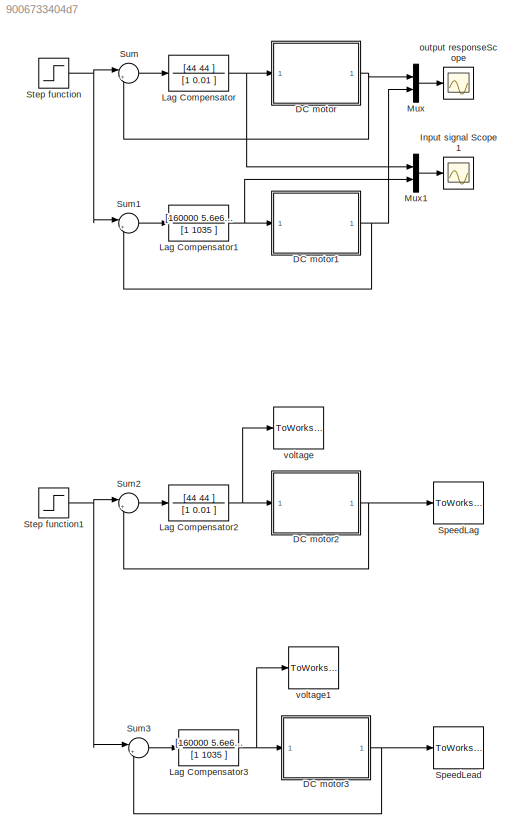
MODEL slx_9006733404d7
KIND model
CONFIG AbsTol = auto
CONFIG EnableMultiTasking = off
CONFIG FixedStep = auto
CONFIG MaxStep = auto
CONFIG MinStep = auto
CONFIG RelTol = 1e-3
CONFIG SampleTimeConstraint = Unconstrained
CONFIG Solver = VariableStepAuto
CONFIG SolverName = VariableStepAuto
CONFIG StartTime = 0.0
CONFIG StopTime = 1.0
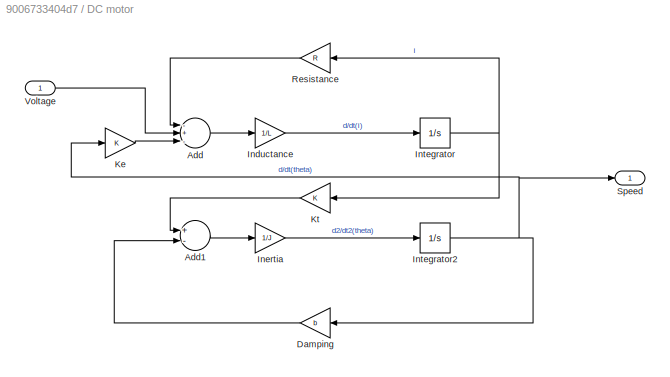
BLOCK [SubSystem] DC motor
  Ports = [1, 1]
  RequestExecContextInheritance = off
BLOCK [Sum] DC motor/Add
  InputSameDT = off
  Inputs = -+-
  OutDataTypeStr = Inherit: Inherit via internal rule
  Ports = [3, 1]
  SaturateOnIntegerOverflow = off
BLOCK [Sum] DC motor/Add1
  InputSameDT = off
  Inputs = +-
  OutDataTypeStr = Inherit: Inherit via internal rule
  Ports = [2, 1]
  SaturateOnIntegerOverflow = off
BLOCK [Gain] DC motor/Damping
  Gain = b
  OutDataTypeStr = Inherit: Inherit via internal rule
  ParamDataTypeStr = Inherit: Inherit via internal rule
  SaturateOnIntegerOverflow = off
BLOCK [Gain] DC motor/Inductance
  Gain = 1/L
  OutDataTypeStr = Inherit: Inherit via internal rule
  ParamDataTypeStr = Inherit: Inherit via internal rule
  SaturateOnIntegerOverflow = off
BLOCK [Gain] DC motor/Inertia
  Gain = 1/J
  OutDataTypeStr = Inherit: Inherit via internal rule
  ParamDataTypeStr = Inherit: Inherit via internal rule
  SaturateOnIntegerOverflow = off
BLOCK [Integrator] DC motor/Integrator
  Ports = [1, 1]
BLOCK [Integrator] DC motor/Integrator2
  Ports = [1, 1]
BLOCK [Gain] DC motor/Ke
  Gain = K
  OutDataTypeStr = Inherit: Inherit via internal rule
  ParamDataTypeStr = Inherit: Inherit via internal rule
  SaturateOnIntegerOverflow = off
BLOCK [Gain] DC motor/Kt
  Gain = K
  OutDataTypeStr = Inherit: Inherit via internal rule
  ParamDataTypeStr = Inherit: Inherit via internal rule
  SaturateOnIntegerOverflow = off
BLOCK [Gain] DC motor/Resistance
  Gain = R
  OutDataTypeStr = Inherit: Inherit via internal rule
  ParamDataTypeStr = Inherit: Inherit via internal rule
  SaturateOnIntegerOverflow = off
BLOCK [Outport] DC motor/Speed
  IconDisplay = Port number
BLOCK [Inport] DC motor/Voltage
  IconDisplay = Port number
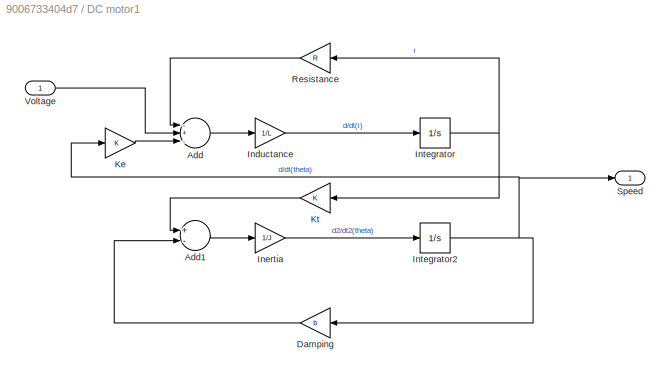
BLOCK [SubSystem] DC motor1
  Ports = [1, 1]
  RequestExecContextInheritance = off
BLOCK [Sum] DC motor1/Add
  InputSameDT = off
  Inputs = -+-
  OutDataTypeStr = Inherit: Inherit via internal rule
  Ports = [3, 1]
  SaturateOnIntegerOverflow = off
BLOCK [Sum] DC motor1/Add1
  InputSameDT = off
  Inputs = +-
  OutDataTypeStr = Inherit: Inherit via internal rule
  Ports = [2, 1]
  SaturateOnIntegerOverflow = off
BLOCK [Gain] DC motor1/Damping
  Gain = b
  OutDataTypeStr = Inherit: Inherit via internal rule
  ParamDataTypeStr = Inherit: Inherit via internal rule
  SaturateOnIntegerOverflow = off
BLOCK [Gain] DC motor1/Inductance
  Gain = 1/L
  OutDataTypeStr = Inherit: Inherit via internal rule
  ParamDataTypeStr = Inherit: Inherit via internal rule
  SaturateOnIntegerOverflow = off
BLOCK [Gain] DC motor1/Inertia
  Gain = 1/J
  OutDataTypeStr = Inherit: Inherit via internal rule
  ParamDataTypeStr = Inherit: Inherit via internal rule
  SaturateOnIntegerOverflow = off
BLOCK [Integrator] DC motor1/Integrator
  Ports = [1, 1]
BLOCK [Integrator] DC motor1/Integrator2
  Ports = [1, 1]
BLOCK [Gain] DC motor1/Ke
  Gain = K
  OutDataTypeStr = Inherit: Inherit via internal rule
  ParamDataTypeStr = Inherit: Inherit via internal rule
  SaturateOnIntegerOverflow = off
BLOCK [Gain] DC motor1/Kt
  Gain = K
  OutDataTypeStr = Inherit: Inherit via internal rule
  ParamDataTypeStr = Inherit: Inherit via internal rule
  SaturateOnIntegerOverflow = off
BLOCK [Gain] DC motor1/Resistance
  Gain = R
  OutDataTypeStr = Inherit: Inherit via internal rule
  ParamDataTypeStr = Inherit: Inherit via internal rule
  SaturateOnIntegerOverflow = off
BLOCK [Outport] DC motor1/Speed
  IconDisplay = Port number
BLOCK [Inport] DC motor1/Voltage
  IconDisplay = Port number
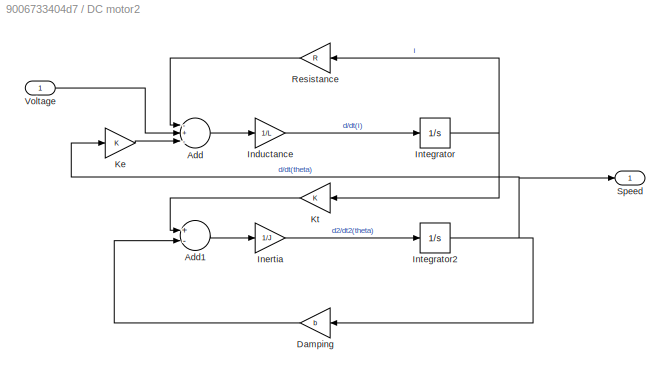
BLOCK [SubSystem] DC motor2
  Ports = [1, 1]
  RequestExecContextInheritance = off
BLOCK [Sum] DC motor2/Add
  InputSameDT = off
  Inputs = -+-
  OutDataTypeStr = Inherit: Inherit via internal rule
  Ports = [3, 1]
  SaturateOnIntegerOverflow = off
BLOCK [Sum] DC motor2/Add1
  InputSameDT = off
  Inputs = +-
  OutDataTypeStr = Inherit: Inherit via internal rule
  Ports = [2, 1]
  SaturateOnIntegerOverflow = off
BLOCK [Gain] DC motor2/Damping
  Gain = b
  OutDataTypeStr = Inherit: Inherit via internal rule
  ParamDataTypeStr = Inherit: Inherit via internal rule
  SaturateOnIntegerOverflow = off
BLOCK [Gain] DC motor2/Inductance
  Gain = 1/L
  OutDataTypeStr = Inherit: Inherit via internal rule
  ParamDataTypeStr = Inherit: Inherit via internal rule
  SaturateOnIntegerOverflow = off
BLOCK [Gain] DC motor2/Inertia
  Gain = 1/J
  OutDataTypeStr = Inherit: Inherit via internal rule
  ParamDataTypeStr = Inherit: Inherit via internal rule
  SaturateOnIntegerOverflow = off
BLOCK [Integrator] DC motor2/Integrator
  Ports = [1, 1]
BLOCK [Integrator] DC motor2/Integrator2
  Ports = [1, 1]
BLOCK [Gain] DC motor2/Ke
  Gain = K
  OutDataTypeStr = Inherit: Inherit via internal rule
  ParamDataTypeStr = Inherit: Inherit via internal rule
  SaturateOnIntegerOverflow = off
BLOCK [Gain] DC motor2/Kt
  Gain = K
  OutDataTypeStr = Inherit: Inherit via internal rule
  ParamDataTypeStr = Inherit: Inherit via internal rule
  SaturateOnIntegerOverflow = off
BLOCK [Gain] DC motor2/Resistance
  Gain = R
  OutDataTypeStr = Inherit: Inherit via internal rule
  ParamDataTypeStr = Inherit: Inherit via internal rule
  SaturateOnIntegerOverflow = off
BLOCK [Outport] DC motor2/Speed
  IconDisplay = Port number
BLOCK [Inport] DC motor2/Voltage
  IconDisplay = Port number
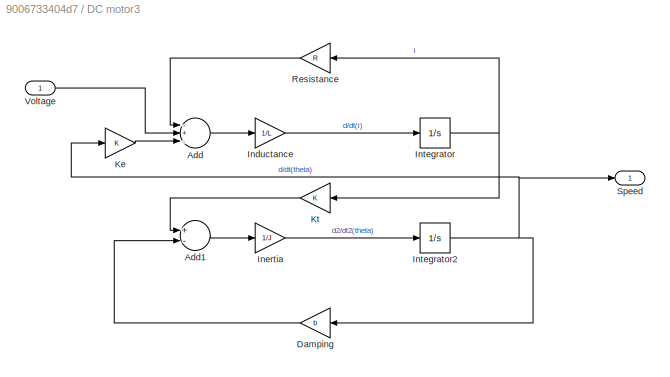
BLOCK [SubSystem] DC motor3
  Ports = [1, 1]
  RequestExecContextInheritance = off
BLOCK [Sum] DC motor3/Add
  InputSameDT = off
  Inputs = -+-
  OutDataTypeStr = Inherit: Inherit via internal rule
  Ports = [3, 1]
  SaturateOnIntegerOverflow = off
BLOCK [Sum] DC motor3/Add1
  InputSameDT = off
  Inputs = +-
  OutDataTypeStr = Inherit: Inherit via internal rule
  Ports = [2, 1]
  SaturateOnIntegerOverflow = off
BLOCK [Gain] DC motor3/Damping
  Gain = b
  OutDataTypeStr = Inherit: Inherit via internal rule
  ParamDataTypeStr = Inherit: Inherit via internal rule
  SaturateOnIntegerOverflow = off
BLOCK [Gain] DC motor3/Inductance
  Gain = 1/L
  OutDataTypeStr = Inherit: Inherit via internal rule
  ParamDataTypeStr = Inherit: Inherit via internal rule
  SaturateOnIntegerOverflow = off
BLOCK [Gain] DC motor3/Inertia
  Gain = 1/J
  OutDataTypeStr = Inherit: Inherit via internal rule
  ParamDataTypeStr = Inherit: Inherit via internal rule
  SaturateOnIntegerOverflow = off
BLOCK [Integrator] DC motor3/Integrator
  Ports = [1, 1]
BLOCK [Integrator] DC motor3/Integrator2
  Ports = [1, 1]
BLOCK [Gain] DC motor3/Ke
  Gain = K
  OutDataTypeStr = Inherit: Inherit via internal rule
  ParamDataTypeStr = Inherit: Inherit via internal rule
  SaturateOnIntegerOverflow = off
BLOCK [Gain] DC motor3/Kt
  Gain = K
  OutDataTypeStr = Inherit: Inherit via internal rule
  ParamDataTypeStr = Inherit: Inherit via internal rule
  SaturateOnIntegerOverflow = off
BLOCK [Gain] DC motor3/Resistance
  Gain = R
  OutDataTypeStr = Inherit: Inherit via internal rule
  ParamDataTypeStr = Inherit: Inherit via internal rule
  SaturateOnIntegerOverflow = off
BLOCK [Outport] DC motor3/Speed
  IconDisplay = Port number
BLOCK [Inport] DC motor3/Voltage
  IconDisplay = Port number
BLOCK [Scope] Input signal Scope 1
  Floating = off
  NumInputPorts = 1
  Ports = [1]
  ScopeSpecificationString = Simulink.scopes.TimeScopeBlockCfg('CurrentConfiguration', extmgr.ConfigurationSet(extmgr.Configuration('Core','General UI',true),extmgr.Configuration('Core','Source UI',true),extmgr.Configuration('Sources','WiredSimulink',true,'DataLoggingVariableName','ScopeData1'),extmgr.Configuration('Visuals','Time Domain',true,'SerializedDisplays',{struct('MinYLimReal','-45920.74104','MaxYLimReal','182880.082...<+1502ch>
BLOCK [TransferFcn] Lag Compensator
  Denominator = [1 0.01 ]
  Numerator = [44 44 ]
BLOCK [TransferFcn] Lag Compensator1
  Denominator = [1 1035 ]
  Numerator = [160000 5.6e6 ]
BLOCK [TransferFcn] Lag Compensator2
  Denominator = [1 0.01 ]
  Numerator = [44 44 ]
BLOCK [TransferFcn] Lag Compensator3
  Denominator = [1 1035 ]
  Numerator = [160000 5.6e6 ]
BLOCK [Mux] Mux
  DisplayOption = bar
  Inputs = 2
  Ports = [2, 1]
BLOCK [Mux] Mux1
  DisplayOption = bar
  Inputs = 2
  Ports = [2, 1]
BLOCK [ToWorkspace] SpeedLag
  MaxDataPoints = inf
  Ports = [1]
  SampleTime = -1
  Save2DSignal = 2-D array (concatenate along first dimension)
  VariableName = ylag
BLOCK [ToWorkspace] SpeedLead
  MaxDataPoints = inf
  Ports = [1]
  SampleTime = -1
  Save2DSignal = 2-D array (concatenate along first dimension)
  VariableName = ylead
BLOCK [Step] Step function
  SampleTime = 0
  Time = 0
BLOCK [Step] Step function1
  SampleTime = 0
  Time = 0
BLOCK [Sum] Sum
  IconShape = round
  InputSameDT = off
  Inputs = |+-
  OutDataTypeStr = Inherit: Inherit via internal rule
  Ports = [2, 1]
  SaturateOnIntegerOverflow = off
BLOCK [Sum] Sum1
  IconShape = round
  InputSameDT = off
  Inputs = |+-
  OutDataTypeStr = Inherit: Inherit via internal rule
  Ports = [2, 1]
  SaturateOnIntegerOverflow = off
BLOCK [Sum] Sum2
  IconShape = round
  InputSameDT = off
  Inputs = |+-
  OutDataTypeStr = Inherit: Inherit via internal rule
  Ports = [2, 1]
  SaturateOnIntegerOverflow = off
BLOCK [Sum] Sum3
  IconShape = round
  InputSameDT = off
  Inputs = |+-
  OutDataTypeStr = Inherit: Inherit via internal rule
  Ports = [2, 1]
  SaturateOnIntegerOverflow = off
BLOCK [Scope] output responseScope 
  Floating = off
  NumInputPorts = 1
  Ports = [1]
  ScopeSpecificationString = Simulink.scopes.TimeScopeBlockCfg('CurrentConfiguration', extmgr.ConfigurationSet(extmgr.Configuration('Core','General UI',true),extmgr.Configuration('Core','Source UI',true),extmgr.Configuration('Sources','WiredSimulink',true),extmgr.Configuration('Visuals','Time Domain',true,'SerializedDisplays',{struct('MinYLimReal','-0.13257','MaxYLimReal','1.19312','YLabelReal','','MinYLimMag','0.00000','MaxY...<+1391ch>
BLOCK [ToWorkspace] voltage
  MaxDataPoints = inf
  Ports = [1]
  SampleTime = -1
  Save2DSignal = 2-D array (concatenate along first dimension)
  VariableName = ulag
BLOCK [ToWorkspace] voltage1
  MaxDataPoints = inf
  Ports = [1]
  SampleTime = -1
  Save2DSignal = 2-D array (concatenate along first dimension)
  VariableName = ulead
LINE DC motor/Add1:1 -> DC motor/Inertia:1
LINE DC motor/Add:1 -> DC motor/Inductance:1
LINE DC motor/Damping:1 -> DC motor/Add1:2
LINE DC motor/Inductance:1 -> DC motor/Integrator:1
LINE DC motor/Inertia:1 -> DC motor/Integrator2:1
NET DC motor/Integrator2:1 -> DC motor/Damping:1, DC motor/Ke:1, DC motor/Speed:1
NET DC motor/Integrator:1 -> DC motor/Kt:1, DC motor/Resistance:1
LINE DC motor/Ke:1 -> DC motor/Add:3
LINE DC motor/Kt:1 -> DC motor/Add1:1
LINE DC motor/Resistance:1 -> DC motor/Add:1
LINE DC motor/Voltage:1 -> DC motor/Add:2
LINE DC motor1/Add1:1 -> DC motor1/Inertia:1
LINE DC motor1/Add:1 -> DC motor1/Inductance:1
LINE DC motor1/Damping:1 -> DC motor1/Add1:2
LINE DC motor1/Inductance:1 -> DC motor1/Integrator:1
LINE DC motor1/Inertia:1 -> DC motor1/Integrator2:1
NET DC motor1/Integrator2:1 -> DC motor1/Damping:1, DC motor1/Ke:1, DC motor1/Speed:1
NET DC motor1/Integrator:1 -> DC motor1/Kt:1, DC motor1/Resistance:1
LINE DC motor1/Ke:1 -> DC motor1/Add:3
LINE DC motor1/Kt:1 -> DC motor1/Add1:1
LINE DC motor1/Resistance:1 -> DC motor1/Add:1
LINE DC motor1/Voltage:1 -> DC motor1/Add:2
NET DC motor1:1 -> Mux:2, Sum1:2
LINE DC motor2/Add1:1 -> DC motor2/Inertia:1
LINE DC motor2/Add:1 -> DC motor2/Inductance:1
LINE DC motor2/Damping:1 -> DC motor2/Add1:2
LINE DC motor2/Inductance:1 -> DC motor2/Integrator:1
LINE DC motor2/Inertia:1 -> DC motor2/Integrator2:1
NET DC motor2/Integrator2:1 -> DC motor2/Damping:1, DC motor2/Ke:1, DC motor2/Speed:1
NET DC motor2/Integrator:1 -> DC motor2/Kt:1, DC motor2/Resistance:1
LINE DC motor2/Ke:1 -> DC motor2/Add:3
LINE DC motor2/Kt:1 -> DC motor2/Add1:1
LINE DC motor2/Resistance:1 -> DC motor2/Add:1
LINE DC motor2/Voltage:1 -> DC motor2/Add:2
NET DC motor2:1 -> SpeedLag:1, Sum2:2
LINE DC motor3/Add1:1 -> DC motor3/Inertia:1
LINE DC motor3/Add:1 -> DC motor3/Inductance:1
LINE DC motor3/Damping:1 -> DC motor3/Add1:2
LINE DC motor3/Inductance:1 -> DC motor3/Integrator:1
LINE DC motor3/Inertia:1 -> DC motor3/Integrator2:1
NET DC motor3/Integrator2:1 -> DC motor3/Damping:1, DC motor3/Ke:1, DC motor3/Speed:1
NET DC motor3/Integrator:1 -> DC motor3/Kt:1, DC motor3/Resistance:1
LINE DC motor3/Ke:1 -> DC motor3/Add:3
LINE DC motor3/Kt:1 -> DC motor3/Add1:1
LINE DC motor3/Resistance:1 -> DC motor3/Add:1
LINE DC motor3/Voltage:1 -> DC motor3/Add:2
NET DC motor3:1 -> SpeedLead:1, Sum3:2
NET DC motor:1 -> Mux:1, Sum:2
NET Lag Compensator1:1 -> DC motor1:1, Mux1:2
NET Lag Compensator2:1 -> DC motor2:1, voltage:1
NET Lag Compensator3:1 -> DC motor3:1, voltage1:1
NET Lag Compensator:1 -> DC motor:1, Mux1:1
LINE Mux1:1 -> Input signal Scope 1:1
LINE Mux:1 -> output responseScope :1
NET Step function1:1 -> Sum2:1, Sum3:1
NET Step function:1 -> Sum1:1, Sum:1
LINE Sum1:1 -> Lag Compensator1:1
LINE Sum2:1 -> Lag Compensator2:1
LINE Sum3:1 -> Lag Compensator3:1
LINE Sum:1 -> Lag Compensator:1
note: NET lines group one-source signal fan-out (src -> all destinations, sorted); 1:1 wires keep LINE
